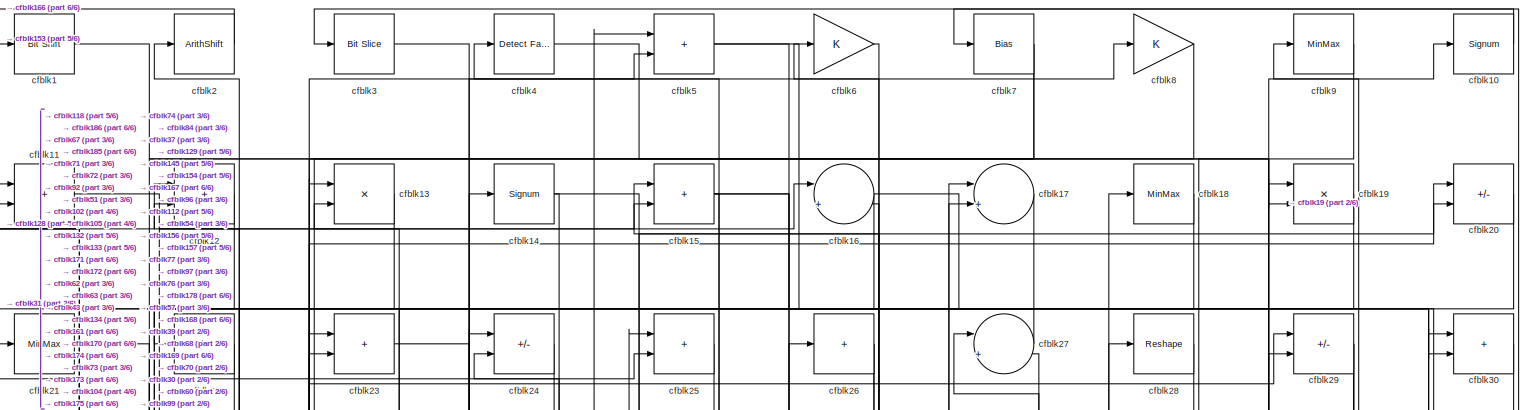
[diagram: root canvas - part 1/6, full width, top band]
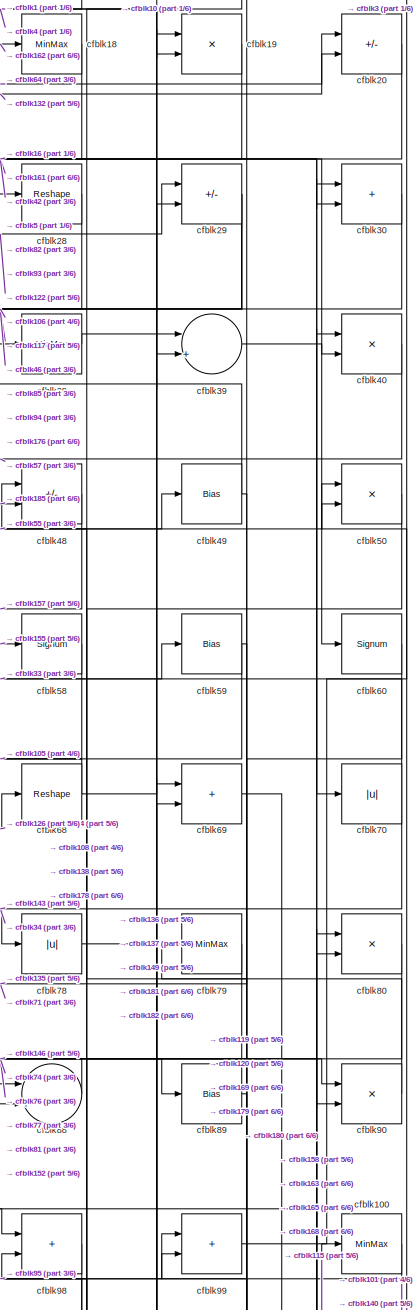
[diagram: root canvas - part 2/6, top right region]
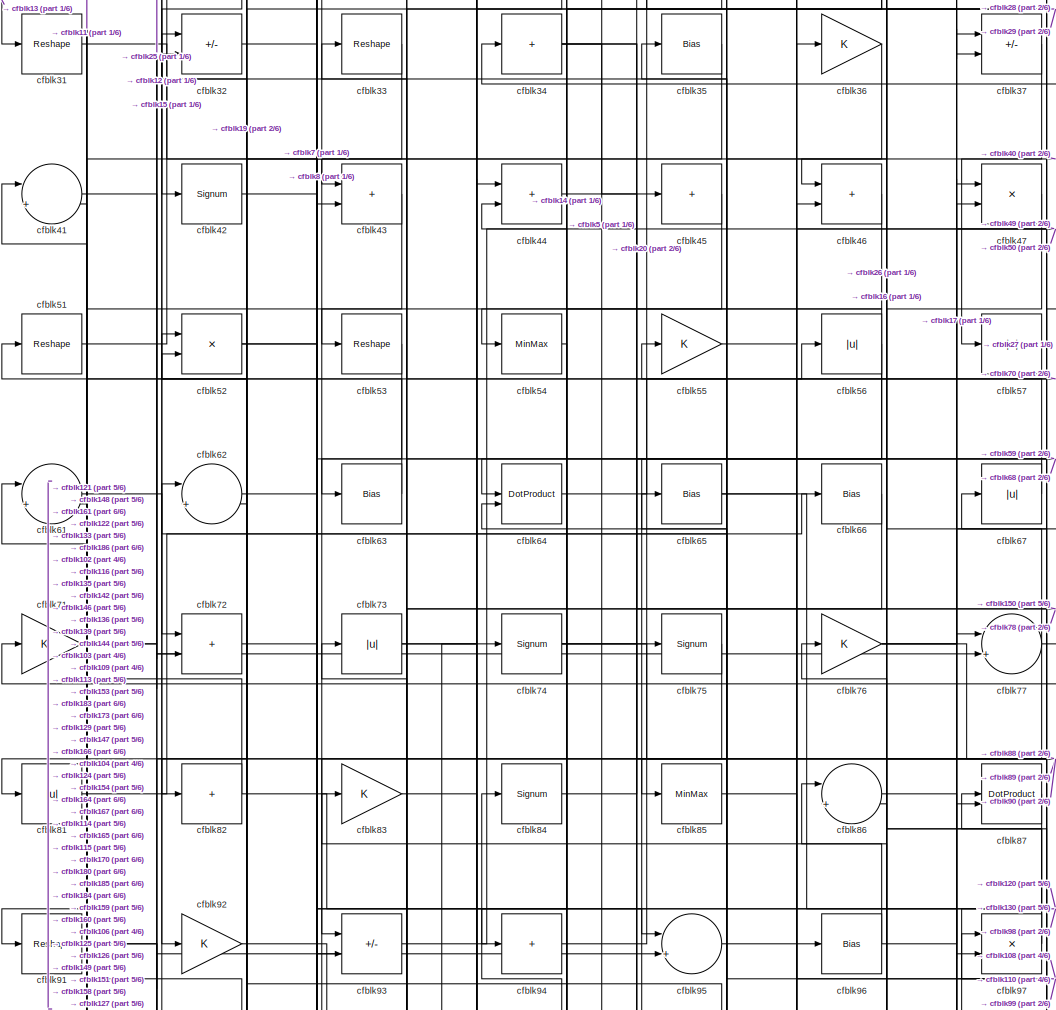
[diagram: root canvas - part 3/6, central region]
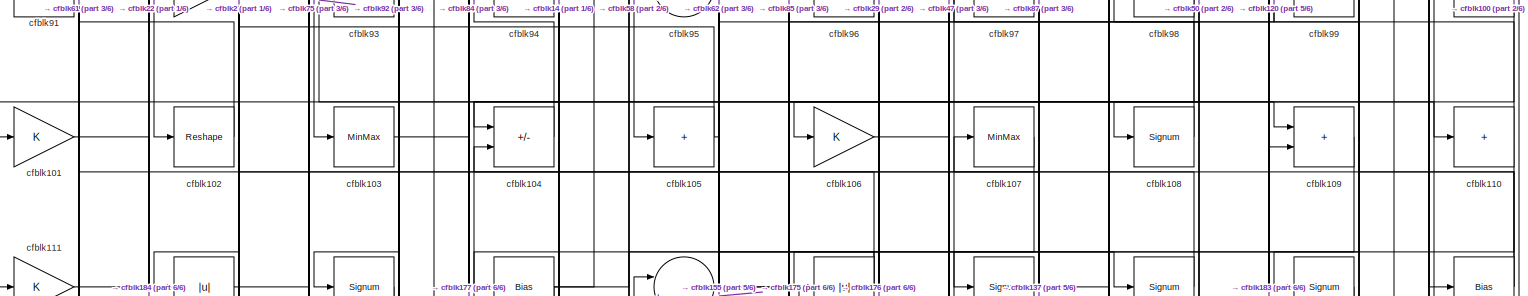
[diagram: root canvas - part 4/6, full width, middle band]
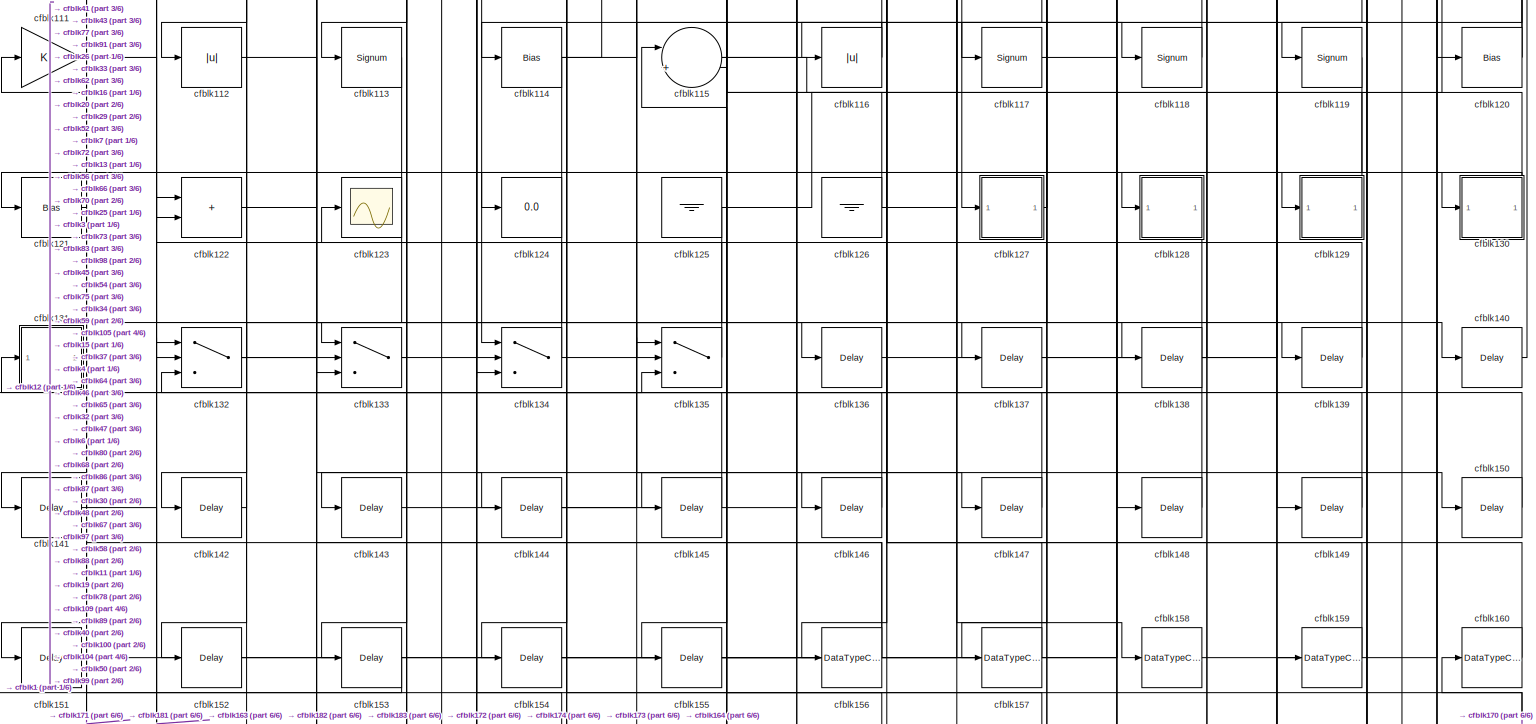
[diagram: root canvas - part 5/6, full width, bottom band]
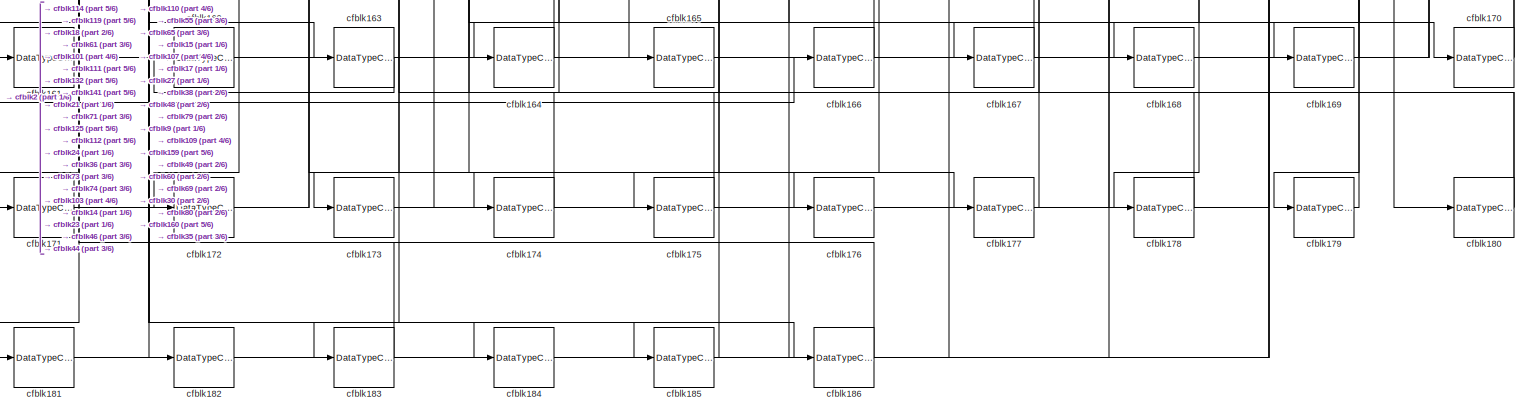
[diagram: root canvas - part 6/6, full width, bottom band]
MODEL slx_8410457b886d
KIND model
CONFIG AbsTol = auto
CONFIG EnableMultiTasking = off
CONFIG FixedStep = auto
CONFIG MaxStep = auto
CONFIG MinStep = auto
CONFIG RelTol = 1e-3
CONFIG SampleTimeConstraint = Unconstrained
CONFIG SolverName = VariableStepAuto
CONFIG StartTime = 0.0
CONFIG StopTime = 10.0
BLOCK [Reference] cfblk1  REF=hdlsllib/Logic and Bit
Operations/Bit Shift
  SourceBlock = hdlsllib/Logic and Bit\nOperations/Bit Shift
  SourceType = Bit Shift
BLOCK [Signum] cfblk10
BLOCK [MinMax] cfblk100
BLOCK [Gain] cfblk101
BLOCK [Reshape] cfblk102
BLOCK [MinMax] cfblk103
BLOCK [Sum] cfblk104
  IconShape = rectangular
  Inputs = +-
BLOCK [Sum] cfblk105
  IconShape = rectangular
  Inputs = +
BLOCK [Gain] cfblk106
BLOCK [MinMax] cfblk107
BLOCK [Signum] cfblk108
BLOCK [Sum] cfblk109
  IconShape = rectangular
BLOCK [Sum] cfblk11
  IconShape = rectangular
BLOCK [Sum] cfblk110
  IconShape = rectangular
  Inputs = +
BLOCK [Gain] cfblk111
BLOCK [Abs] cfblk112
  SaturateOnIntegerOverflow = off
BLOCK [Signum] cfblk113
BLOCK [Bias] cfblk114
  Bias = 0.0
  SaturateOnIntegerOverflow = off
BLOCK [Sum] cfblk115
  Inputs = |++
BLOCK [Abs] cfblk116
  SaturateOnIntegerOverflow = off
BLOCK [Signum] cfblk117
BLOCK [Signum] cfblk118
BLOCK [Signum] cfblk119
BLOCK [Sum] cfblk12
  IconShape = rectangular
BLOCK [Bias] cfblk120
  Bias = 0.0
  SaturateOnIntegerOverflow = off
BLOCK [Bias] cfblk121
  Bias = 0.0
  SaturateOnIntegerOverflow = off
BLOCK [Sum] cfblk122
  IconShape = rectangular
BLOCK [Scope] cfblk123
  Floating = off
  NumInputPorts = 1
  ScopeSpecificationString = Simulink.scopes.TimeScopeBlockCfg('CurrentConfiguration', extmgr.ConfigurationSet(extmgr.Configuration('Core','General UI',true),extmgr.Configuration('Core','Source UI',true),extmgr.Configuration('Sources','WiredSimulink',true,'DataLoggingVariableName','ScopeData2','DataLoggingSaveFormat','Array','DataLoggingLimitDataPoints',true,'DataLoggingDecimation','1'),extmgr.Configuration('Visuals','Time Do...<+868ch>
BLOCK [Display] cfblk124
  Decimation = 1
BLOCK [Ground] cfblk125
BLOCK [Ground] cfblk126
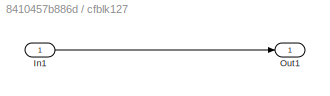
BLOCK [SubSystem] cfblk127
  LibrarySourceBlock = hdlsllib/Ports &\nSubsystems/Subsystem
BLOCK [Inport] cfblk127/In1
BLOCK [Outport] cfblk127/Out1
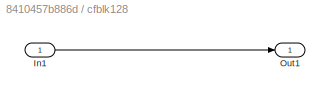
BLOCK [SubSystem] cfblk128
  LibrarySourceBlock = hdlsllib/Ports &\nSubsystems/Subsystem
BLOCK [Inport] cfblk128/In1
BLOCK [Outport] cfblk128/Out1
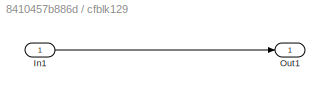
BLOCK [SubSystem] cfblk129
  LibrarySourceBlock = hdlsllib/Ports &\nSubsystems/Subsystem
BLOCK [Inport] cfblk129/In1
BLOCK [Outport] cfblk129/Out1
BLOCK [Product] cfblk13
  Inputs = */
  RndMeth = Zero
  SaturateOnIntegerOverflow = on
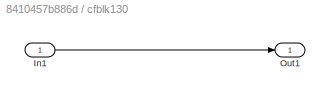
BLOCK [SubSystem] cfblk130
  LibrarySourceBlock = hdlsllib/Ports &\nSubsystems/Subsystem
BLOCK [Inport] cfblk130/In1
BLOCK [Outport] cfblk130/Out1
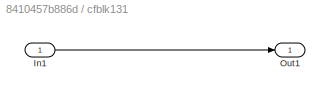
BLOCK [SubSystem] cfblk131
  LibrarySourceBlock = hdlsllib/Ports &\nSubsystems/Subsystem
BLOCK [Inport] cfblk131/In1
BLOCK [Outport] cfblk131/Out1
BLOCK [Switch] cfblk132
  InputSameDT = off
  SaturateOnIntegerOverflow = off
BLOCK [Switch] cfblk133
  InputSameDT = off
  SaturateOnIntegerOverflow = off
BLOCK [Switch] cfblk134
  InputSameDT = off
  SaturateOnIntegerOverflow = off
BLOCK [Switch] cfblk135
  InputSameDT = off
  SaturateOnIntegerOverflow = off
BLOCK [Delay] cfblk136
  InputPortMap = u0
  SampleTime = 1
BLOCK [Delay] cfblk137
  InputPortMap = u0
  SampleTime = 1
BLOCK [Delay] cfblk138
  InputPortMap = u0
  SampleTime = 1
BLOCK [Delay] cfblk139
  InputPortMap = u0
  SampleTime = 1
BLOCK [Signum] cfblk14
BLOCK [Delay] cfblk140
  InputPortMap = u0
  SampleTime = 1
BLOCK [Delay] cfblk141
  InputPortMap = u0
  SampleTime = 1
BLOCK [Delay] cfblk142
  InputPortMap = u0
  SampleTime = 1
BLOCK [Delay] cfblk143
  InputPortMap = u0
  SampleTime = 1
BLOCK [Delay] cfblk144
  InputPortMap = u0
  SampleTime = 1
BLOCK [Delay] cfblk145
  InputPortMap = u0
  SampleTime = 1
BLOCK [Delay] cfblk146
  InputPortMap = u0
  SampleTime = 1
BLOCK [Delay] cfblk147
  InputPortMap = u0
  SampleTime = 1
BLOCK [Delay] cfblk148
  InputPortMap = u0
  SampleTime = 1
BLOCK [Delay] cfblk149
  InputPortMap = u0
  SampleTime = 1
BLOCK [Sum] cfblk15
  IconShape = rectangular
BLOCK [Delay] cfblk150
  InputPortMap = u0
  SampleTime = 1
BLOCK [Delay] cfblk151
  InputPortMap = u0
  SampleTime = 1
BLOCK [Delay] cfblk152
  InputPortMap = u0
  SampleTime = 1
BLOCK [Delay] cfblk153
  InputPortMap = u0
  SampleTime = 1
BLOCK [Delay] cfblk154
  InputPortMap = u0
  SampleTime = 1
BLOCK [Delay] cfblk155
  InputPortMap = u0
  SampleTime = 1
BLOCK [DataTypeConversion] cfblk156
  RndMeth = Floor
  SaturateOnIntegerOverflow = off
BLOCK [DataTypeConversion] cfblk157
  OutDataTypeStr = uint8
  RndMeth = Floor
  SaturateOnIntegerOverflow = off
BLOCK [DataTypeConversion] cfblk158
  OutDataTypeStr = uint8
  RndMeth = Floor
  SaturateOnIntegerOverflow = off
BLOCK [DataTypeConversion] cfblk159
  OutDataTypeStr = uint8
  RndMeth = Floor
  SaturateOnIntegerOverflow = off
BLOCK [Sum] cfblk16
  Inputs = |++
BLOCK [DataTypeConversion] cfblk160
  OutDataTypeStr = uint8
  RndMeth = Floor
  SaturateOnIntegerOverflow = off
BLOCK [DataTypeConversion] cfblk161
  RndMeth = Floor
  SaturateOnIntegerOverflow = off
BLOCK [DataTypeConversion] cfblk162
  OutDataTypeStr = uint8
  RndMeth = Floor
  SaturateOnIntegerOverflow = off
BLOCK [DataTypeConversion] cfblk163
  RndMeth = Floor
  SaturateOnIntegerOverflow = off
BLOCK [DataTypeConversion] cfblk164
  OutDataTypeStr = uint8
  RndMeth = Floor
  SaturateOnIntegerOverflow = off
BLOCK [DataTypeConversion] cfblk165
  OutDataTypeStr = uint8
  RndMeth = Floor
  SaturateOnIntegerOverflow = off
BLOCK [DataTypeConversion] cfblk166
  OutDataTypeStr = uint8
  RndMeth = Floor
  SaturateOnIntegerOverflow = off
BLOCK [DataTypeConversion] cfblk167
  OutDataTypeStr = uint8
  RndMeth = Floor
  SaturateOnIntegerOverflow = off
BLOCK [DataTypeConversion] cfblk168
  OutDataTypeStr = uint8
  RndMeth = Floor
  SaturateOnIntegerOverflow = off
BLOCK [DataTypeConversion] cfblk169
  OutDataTypeStr = uint8
  RndMeth = Floor
  SaturateOnIntegerOverflow = off
BLOCK [Sum] cfblk17
  Inputs = |++
BLOCK [DataTypeConversion] cfblk170
  RndMeth = Floor
  SaturateOnIntegerOverflow = off
BLOCK [DataTypeConversion] cfblk171
  OutDataTypeStr = uint8
  RndMeth = Floor
  SaturateOnIntegerOverflow = off
BLOCK [DataTypeConversion] cfblk172
  OutDataTypeStr = uint8
  RndMeth = Floor
  SaturateOnIntegerOverflow = off
BLOCK [DataTypeConversion] cfblk173
  RndMeth = Floor
  SaturateOnIntegerOverflow = off
BLOCK [DataTypeConversion] cfblk174
  OutDataTypeStr = uint8
  RndMeth = Floor
  SaturateOnIntegerOverflow = off
BLOCK [DataTypeConversion] cfblk175
  OutDataTypeStr = uint8
  RndMeth = Floor
  SaturateOnIntegerOverflow = off
BLOCK [DataTypeConversion] cfblk176
  OutDataTypeStr = uint8
  RndMeth = Floor
  SaturateOnIntegerOverflow = off
BLOCK [DataTypeConversion] cfblk177
  OutDataTypeStr = uint8
  RndMeth = Floor
  SaturateOnIntegerOverflow = off
BLOCK [DataTypeConversion] cfblk178
  OutDataTypeStr = uint8
  RndMeth = Floor
  SaturateOnIntegerOverflow = off
BLOCK [DataTypeConversion] cfblk179
  OutDataTypeStr = uint8
  RndMeth = Floor
  SaturateOnIntegerOverflow = off
BLOCK [MinMax] cfblk18
BLOCK [DataTypeConversion] cfblk180
  RndMeth = Floor
  SaturateOnIntegerOverflow = off
BLOCK [DataTypeConversion] cfblk181
  OutDataTypeStr = uint8
  RndMeth = Floor
  SaturateOnIntegerOverflow = off
BLOCK [DataTypeConversion] cfblk182
  OutDataTypeStr = uint8
  RndMeth = Floor
  SaturateOnIntegerOverflow = off
BLOCK [DataTypeConversion] cfblk183
  RndMeth = Floor
  SaturateOnIntegerOverflow = off
BLOCK [DataTypeConversion] cfblk184
  OutDataTypeStr = uint8
  RndMeth = Floor
  SaturateOnIntegerOverflow = off
BLOCK [DataTypeConversion] cfblk185
  RndMeth = Floor
  SaturateOnIntegerOverflow = off
BLOCK [DataTypeConversion] cfblk186
  OutDataTypeStr = uint8
  RndMeth = Floor
  SaturateOnIntegerOverflow = off
BLOCK [Product] cfblk19
  Inputs = */
  RndMeth = Zero
  SaturateOnIntegerOverflow = on
BLOCK [ArithShift] cfblk2
  BitShiftNumber = 8
  InputPortMap = u0
BLOCK [Sum] cfblk20
  IconShape = rectangular
  Inputs = +-
BLOCK [MinMax] cfblk21
BLOCK [Bias] cfblk22
  Bias = 0.0
  SaturateOnIntegerOverflow = off
BLOCK [Sum] cfblk23
  IconShape = rectangular
BLOCK [Sum] cfblk24
  IconShape = rectangular
  Inputs = +-
BLOCK [Sum] cfblk25
  IconShape = rectangular
BLOCK [Sum] cfblk26
  IconShape = rectangular
  Inputs = +
BLOCK [Sum] cfblk27
  Inputs = |++
BLOCK [Reshape] cfblk28
BLOCK [Sum] cfblk29
  IconShape = rectangular
  Inputs = +-
BLOCK [Reference] cfblk3  REF=hdlsllib/Logic and Bit
Operations/Bit Slice
  SourceBlock = hdlsllib/Logic and Bit\nOperations/Bit Slice
  SourceType = Bit Slice
BLOCK [Sum] cfblk30
  IconShape = rectangular
BLOCK [Reshape] cfblk31
BLOCK [Sum] cfblk32
  IconShape = rectangular
  Inputs = +-
BLOCK [Reshape] cfblk33
BLOCK [Sum] cfblk34
  IconShape = rectangular
  Inputs = +
BLOCK [Bias] cfblk35
  Bias = 0.0
  SaturateOnIntegerOverflow = off
BLOCK [Gain] cfblk36
BLOCK [Sum] cfblk37
  IconShape = rectangular
  Inputs = +-
BLOCK [MinMax] cfblk38
BLOCK [Sum] cfblk39
  Inputs = |++
BLOCK [Reference] cfblk4  REF=hdlsllib/Logic and Bit
Operations/Detect Fall
Nonpositive
  SourceBlock = hdlsllib/Logic and Bit\nOperations/Detect Fall\nNonpositive
  SourceType = Detect Fall Nonpositive
BLOCK [Product] cfblk40
  Inputs = */
  RndMeth = Zero
  SaturateOnIntegerOverflow = on
BLOCK [Sum] cfblk41
  Inputs = |++
BLOCK [Signum] cfblk42
BLOCK [Sum] cfblk43
  IconShape = rectangular
BLOCK [Sum] cfblk44
  IconShape = rectangular
BLOCK [Sum] cfblk45
  IconShape = rectangular
  Inputs = +
BLOCK [Sum] cfblk46
  IconShape = rectangular
BLOCK [Product] cfblk47
  Inputs = */
  RndMeth = Zero
  SaturateOnIntegerOverflow = on
BLOCK [Sum] cfblk48
  IconShape = rectangular
  Inputs = +-
BLOCK [Bias] cfblk49
  Bias = 0.0
  SaturateOnIntegerOverflow = off
BLOCK [Sum] cfblk5
  IconShape = rectangular
BLOCK [Product] cfblk50
  Inputs = */
  RndMeth = Zero
  SaturateOnIntegerOverflow = on
BLOCK [Reshape] cfblk51
BLOCK [Product] cfblk52
  Inputs = */
  RndMeth = Zero
  SaturateOnIntegerOverflow = on
BLOCK [Reshape] cfblk53
BLOCK [MinMax] cfblk54
BLOCK [Gain] cfblk55
BLOCK [Abs] cfblk56
  SaturateOnIntegerOverflow = off
BLOCK [Abs] cfblk57
  SaturateOnIntegerOverflow = off
BLOCK [Signum] cfblk58
BLOCK [Bias] cfblk59
  Bias = 0.0
  SaturateOnIntegerOverflow = off
BLOCK [Gain] cfblk6
BLOCK [Signum] cfblk60
BLOCK [Sum] cfblk61
  Inputs = |++
BLOCK [Sum] cfblk62
  Inputs = |++
BLOCK [Bias] cfblk63
  Bias = 0.0
  SaturateOnIntegerOverflow = off
BLOCK [DotProduct] cfblk64
  OutDataTypeStr = Inherit: Inherit via internal rule
BLOCK [Bias] cfblk65
  Bias = 0.0
  SaturateOnIntegerOverflow = off
BLOCK [Bias] cfblk66
  Bias = 0.0
  SaturateOnIntegerOverflow = off
BLOCK [Abs] cfblk67
  SaturateOnIntegerOverflow = off
BLOCK [Reshape] cfblk68
BLOCK [Sum] cfblk69
  IconShape = rectangular
BLOCK [Bias] cfblk7
  Bias = 0.0
  SaturateOnIntegerOverflow = off
BLOCK [Abs] cfblk70
  SaturateOnIntegerOverflow = off
BLOCK [Gain] cfblk71
BLOCK [Sum] cfblk72
  IconShape = rectangular
BLOCK [Abs] cfblk73
  SaturateOnIntegerOverflow = off
BLOCK [Signum] cfblk74
BLOCK [Signum] cfblk75
BLOCK [Gain] cfblk76
BLOCK [Sum] cfblk77
  Inputs = |++
BLOCK [Abs] cfblk78
  SaturateOnIntegerOverflow = off
BLOCK [MinMax] cfblk79
BLOCK [Gain] cfblk8
BLOCK [Product] cfblk80
  Inputs = */
  RndMeth = Zero
  SaturateOnIntegerOverflow = on
BLOCK [Abs] cfblk81
  SaturateOnIntegerOverflow = off
BLOCK [Sum] cfblk82
  IconShape = rectangular
  Inputs = +
BLOCK [Gain] cfblk83
BLOCK [Signum] cfblk84
BLOCK [MinMax] cfblk85
BLOCK [Sum] cfblk86
  Inputs = |++
BLOCK [DotProduct] cfblk87
  OutDataTypeStr = Inherit: Inherit via internal rule
BLOCK [Sum] cfblk88
  Inputs = |++
BLOCK [Bias] cfblk89
  Bias = 0.0
  SaturateOnIntegerOverflow = off
BLOCK [MinMax] cfblk9
BLOCK [Product] cfblk90
  Inputs = */
  RndMeth = Zero
  SaturateOnIntegerOverflow = on
BLOCK [Reshape] cfblk91
BLOCK [Gain] cfblk92
BLOCK [Sum] cfblk93
  IconShape = rectangular
  Inputs = +-
BLOCK [Sum] cfblk94
  IconShape = rectangular
  Inputs = +
BLOCK [Sum] cfblk95
  Inputs = |++
BLOCK [Bias] cfblk96
  Bias = 0.0
  SaturateOnIntegerOverflow = off
BLOCK [Product] cfblk97
  Inputs = */
  RndMeth = Zero
  SaturateOnIntegerOverflow = on
BLOCK [Sum] cfblk98
  IconShape = rectangular
BLOCK [Sum] cfblk99
  IconShape = rectangular
LINE cfblk100:1 -> cfblk101:1
LINE cfblk101:1 -> cfblk184:1
LINE cfblk102:1 -> cfblk61:2
LINE cfblk103:1 -> cfblk177:1
LINE cfblk104:1 -> cfblk84:1
NET cfblk105:1 -> cfblk155:1, cfblk2:1
LINE cfblk106:1 -> cfblk47:2
LINE cfblk107:1 -> cfblk176:1
LINE cfblk108:1 -> cfblk62:1
LINE cfblk109:1 -> cfblk137:1
LINE cfblk10:1 -> cfblk7:1
NET cfblk110:1 -> cfblk175:1, cfblk87:1
LINE cfblk111:1 -> cfblk163:1
LINE cfblk112:1 -> cfblk174:1
LINE cfblk113:1 -> cfblk152:1
NET cfblk114:1 -> cfblk118:1, cfblk171:1, cfblk75:1
NET cfblk115:1 -> cfblk100:1, cfblk59:1
NET cfblk116:1 -> cfblk114:1, cfblk32:1
LINE cfblk117:1 -> cfblk148:1
LINE cfblk118:1 -> cfblk11:1
LINE cfblk119:1 -> cfblk181:1
LINE cfblk11:1 -> cfblk16:1
NET cfblk120:1 -> cfblk104:2, cfblk99:1
LINE cfblk121:1 -> cfblk141:1
LINE cfblk122:1 -> cfblk29:1
NET cfblk125:1 -> cfblk172:1, cfblk87:2
NET cfblk126:1 -> cfblk32:2, cfblk68:1
LINE cfblk127/In1:1 -> cfblk127/Out1:1
NET cfblk127:1 -> cfblk67:1, cfblk97:1
LINE cfblk128/In1:1 -> cfblk128/Out1:1
LINE cfblk128:1 -> cfblk12:1
LINE cfblk129/In1:1 -> cfblk129/Out1:1
LINE cfblk129:1 -> cfblk4:1
LINE cfblk12:1 -> cfblk92:1
LINE cfblk130/In1:1 -> cfblk130/Out1:1
NET cfblk130:1 -> cfblk128:1, cfblk64:2
LINE cfblk131/In1:1 -> cfblk131/Out1:1
LINE cfblk131:1 -> cfblk151:1
NET cfblk132:1 -> cfblk12:2, cfblk135:3, cfblk20:2
NET cfblk133:1 -> cfblk13:2, cfblk140:1
NET cfblk134:1 -> cfblk123:1, cfblk138:1
LINE cfblk135:1 -> cfblk52:1
LINE cfblk136:1 -> cfblk29:2
LINE cfblk137:1 -> cfblk19:1
LINE cfblk138:1 -> cfblk98:2
LINE cfblk139:1 -> cfblk122:1
LINE cfblk13:1 -> cfblk31:1
LINE cfblk140:1 -> cfblk50:2
LINE cfblk141:1 -> cfblk182:1
LINE cfblk142:1 -> cfblk62:2
LINE cfblk143:1 -> cfblk135:1
LINE cfblk144:1 -> cfblk46:2
LINE cfblk145:1 -> cfblk132:1
LINE cfblk146:1 -> cfblk52:2
LINE cfblk147:1 -> cfblk115:1
LINE cfblk148:1 -> cfblk41:1
LINE cfblk149:1 -> cfblk37:1
NET cfblk14:1 -> cfblk104:1, cfblk37:2
LINE cfblk150:1 -> cfblk132:3
LINE cfblk151:1 -> cfblk77:1
LINE cfblk152:1 -> cfblk88:1
LINE cfblk153:1 -> cfblk1:1
LINE cfblk154:1 -> cfblk26:1
LINE cfblk155:1 -> cfblk58:1
NET cfblk156:1 -> cfblk131:1, cfblk13:1
LINE cfblk157:1 -> cfblk6:1
LINE cfblk158:1 -> cfblk40:1
LINE cfblk159:1 -> cfblk86:1
NET cfblk15:1 -> cfblk145:1, cfblk167:1, cfblk96:1
LINE cfblk160:1 -> cfblk86:2
NET cfblk161:1 -> cfblk14:1, cfblk61:1
LINE cfblk162:1 -> cfblk18:1
NET cfblk163:1 -> cfblk162:1, cfblk30:1
LINE cfblk164:1 -> cfblk111:1
LINE cfblk165:1 -> cfblk80:1
LINE cfblk166:1 -> cfblk44:1
LINE cfblk167:1 -> cfblk44:2
LINE cfblk168:1 -> cfblk80:2
LINE cfblk169:1 -> cfblk9:1
NET cfblk16:1 -> cfblk133:2, cfblk70:1
NET cfblk170:1 -> cfblk160:1, cfblk35:1
LINE cfblk171:1 -> cfblk23:1
LINE cfblk172:1 -> cfblk23:2
NET cfblk173:1 -> cfblk159:1, cfblk74:1
LINE cfblk174:1 -> cfblk24:1
LINE cfblk175:1 -> cfblk24:2
LINE cfblk176:1 -> cfblk38:1
LINE cfblk177:1 -> cfblk107:1
LINE cfblk178:1 -> cfblk27:1
LINE cfblk179:1 -> cfblk79:1
LINE cfblk17:1 -> cfblk43:1
NET cfblk180:1 -> cfblk55:1, cfblk73:1
LINE cfblk181:1 -> cfblk69:1
LINE cfblk182:1 -> cfblk69:2
NET cfblk183:1 -> cfblk109:2, cfblk132:2
LINE cfblk184:1 -> cfblk36:1
NET cfblk185:1 -> cfblk17:1, cfblk48:2, cfblk65:1
LINE cfblk186:1 -> cfblk21:1
LINE cfblk18:1 -> cfblk161:1
LINE cfblk19:1 -> cfblk82:1
LINE cfblk1:1 -> cfblk19:2
LINE cfblk20:1 -> cfblk42:1
LINE cfblk21:1 -> cfblk185:1
LINE cfblk22:1 -> cfblk102:1
LINE cfblk23:1 -> cfblk170:1
LINE cfblk24:1 -> cfblk173:1
LINE cfblk25:1 -> cfblk134:3
NET cfblk26:1 -> cfblk112:1, cfblk54:1
LINE cfblk27:1 -> cfblk22:1
LINE cfblk28:1 -> cfblk85:1
NET cfblk29:1 -> cfblk106:1, cfblk46:1, cfblk94:1
LINE cfblk2:1 -> cfblk166:1
LINE cfblk30:1 -> cfblk117:1
LINE cfblk31:1 -> cfblk43:2
LINE cfblk32:1 -> cfblk144:1
LINE cfblk33:1 -> cfblk142:1
NET cfblk34:1 -> cfblk150:1, cfblk45:1, cfblk78:1
LINE cfblk35:1 -> cfblk91:1
LINE cfblk36:1 -> cfblk183:1
LINE cfblk37:1 -> cfblk115:2
LINE cfblk38:1 -> cfblk39:1
LINE cfblk39:1 -> cfblk40:2
LINE cfblk3:1 -> cfblk134:2
LINE cfblk40:1 -> cfblk57:1
LINE cfblk41:1 -> cfblk77:2
LINE cfblk42:1 -> cfblk98:1
LINE cfblk43:1 -> cfblk121:1
LINE cfblk44:1 -> cfblk165:1
LINE cfblk45:1 -> cfblk124:1
LINE cfblk46:1 -> cfblk164:1
LINE cfblk47:1 -> cfblk116:1
LINE cfblk48:1 -> cfblk157:1
NET cfblk49:1 -> cfblk179:1, cfblk34:1
LINE cfblk4:1 -> cfblk39:2
LINE cfblk50:1 -> cfblk108:1
LINE cfblk51:1 -> cfblk15:1
NET cfblk52:1 -> cfblk139:1, cfblk97:2
LINE cfblk53:1 -> cfblk93:1
LINE cfblk54:1 -> cfblk154:1
LINE cfblk55:1 -> cfblk50:1
NET cfblk56:1 -> cfblk153:1, cfblk53:1, cfblk93:2
LINE cfblk57:1 -> cfblk27:2
LINE cfblk58:1 -> cfblk105:1
NET cfblk59:1 -> cfblk135:2, cfblk71:1
NET cfblk5:1 -> cfblk30:2, cfblk60:1
LINE cfblk60:1 -> cfblk169:1
LINE cfblk61:1 -> cfblk72:1
LINE cfblk62:1 -> cfblk8:1
LINE cfblk63:1 -> cfblk51:1
LINE cfblk64:1 -> cfblk20:1
NET cfblk65:1 -> cfblk120:1, cfblk130:1
LINE cfblk66:1 -> cfblk113:1
LINE cfblk67:1 -> cfblk11:2
NET cfblk68:1 -> cfblk10:1, cfblk64:1
LINE cfblk69:1 -> cfblk180:1
LINE cfblk6:1 -> cfblk156:1
NET cfblk70:1 -> cfblk143:1, cfblk33:1
NET cfblk71:1 -> cfblk186:1, cfblk25:2
LINE cfblk72:1 -> cfblk136:1
NET cfblk73:1 -> cfblk147:1, cfblk5:2
NET cfblk74:1 -> cfblk5:1, cfblk88:2, cfblk90:1
LINE cfblk75:1 -> cfblk103:1
NET cfblk76:1 -> cfblk17:2, cfblk49:1, cfblk89:1
NET cfblk77:1 -> cfblk122:2, cfblk16:2, cfblk90:2
LINE cfblk78:1 -> cfblk149:1
LINE cfblk79:1 -> cfblk178:1
NET cfblk7:1 -> cfblk133:3, cfblk72:2
LINE cfblk80:1 -> cfblk146:1
LINE cfblk81:1 -> cfblk66:1
NET cfblk82:1 -> cfblk41:2, cfblk95:1
LINE cfblk83:1 -> cfblk129:1
LINE cfblk84:1 -> cfblk25:1
LINE cfblk85:1 -> cfblk110:1
LINE cfblk86:1 -> cfblk158:1
LINE cfblk87:1 -> cfblk127:1
LINE cfblk88:1 -> cfblk81:1
LINE cfblk89:1 -> cfblk119:1
LINE cfblk8:1 -> cfblk63:1
LINE cfblk90:1 -> cfblk48:1
NET cfblk91:1 -> cfblk133:1, cfblk95:2
LINE cfblk92:1 -> cfblk109:1
LINE cfblk93:1 -> cfblk28:1
LINE cfblk94:1 -> cfblk56:1
LINE cfblk95:1 -> cfblk99:2
NET cfblk96:1 -> cfblk47:1, cfblk83:1
NET cfblk97:1 -> cfblk15:2, cfblk76:1
LINE cfblk98:1 -> cfblk134:1
LINE cfblk99:1 -> cfblk3:1
LINE cfblk9:1 -> cfblk168:1
note: NET lines group one-source signal fan-out (src -> all destinations, sorted); 1:1 wires keep LINE
